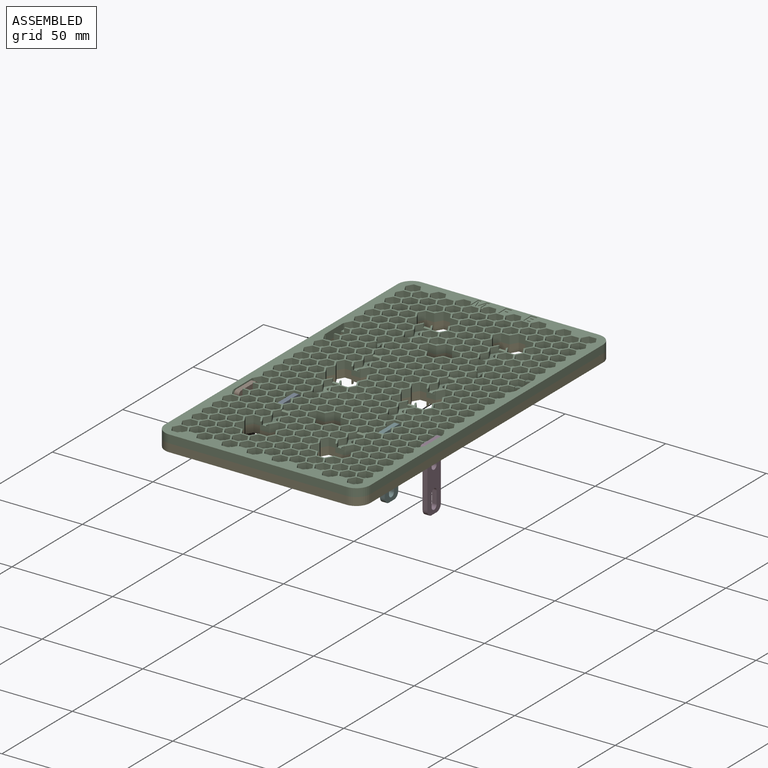
[diagram: assembled view]
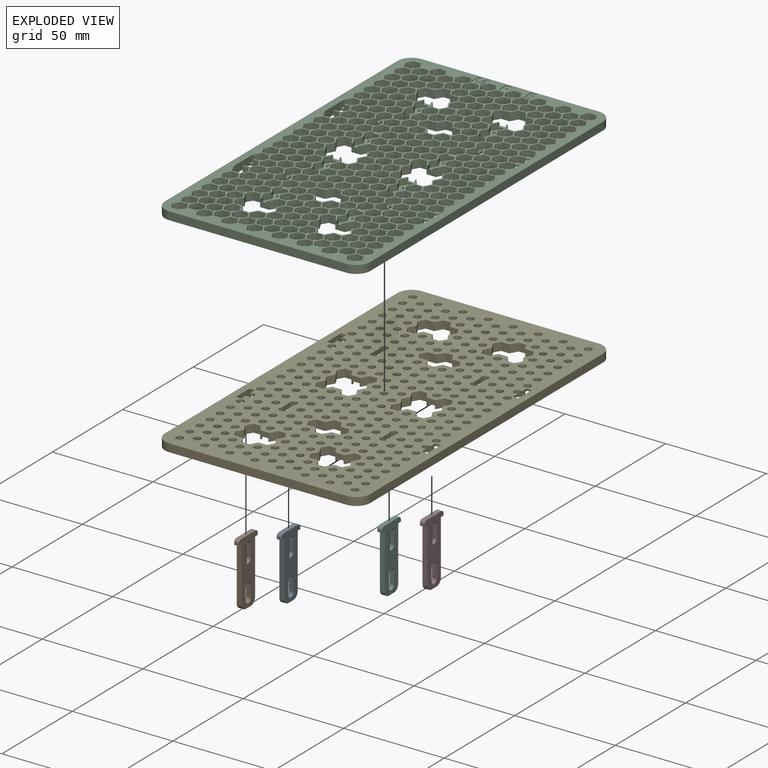
[diagram: exploded view]
GUIDED TOUR — MATED ASSEMBLY (Onshape document 57be3c49d9174e11834226ad, AutoMate assembly 57be3c49d9174e11834226ad_b768346f4bbf75b99037e4f5_8cd4293e581093f42cce2c06_default)

This assembly has 6 components, labeled P0..P5 below (a component is one placed occurrence of a part; the same part can appear more than once), held together by 5 mates. A mate is a constraint between two components; its type names the relative motion it leaves free:
  FASTENED — locks the two components together rigidly (no relative motion).
Axis/direction vectors are unit vectors and 'through' points are millimeter coordinates, both in the assembly's world frame.

MATES
  1. FASTENED "Fastened 4": P5 <-> P2, direction (0.000, 0.000, -1.000) through (26.35, -27.50, 1.00) mm
  2. FASTENED "Fastened 3": P0 <-> P2, direction (0.000, 0.000, -1.000) through (-23.65, -27.50, 1.00) mm
  3. FASTENED "Fastened 1": P2 <-> P4, direction (0.000, 0.000, 1.000) through (0.00, 0.00, 0.00) mm
  4. FASTENED "Fastened 2": P1 <-> P2, direction (0.000, 0.000, -1.000) through (-44.85, -27.50, 1.00) mm
  5. FASTENED "Fastened 5": P3 <-> P2, direction (0.000, 0.000, -1.000) through (47.55, -27.50, 1.00) mm

ASSEMBLY ORDER
  1. P4 — the base component [order verified]
  2. P2 [order verified]
  3. P5 [order verified]
  4. P0 [order verified]
  5. P1 [order verified]
  6. P3 [order verified]
Order-tag legend:
  [order verified] — this step's position reverses a verified removal order: the component was checked to insert without passing through the ones already placed.

Of the 6 components, 4 carry the full construction recipe — the FeatureScript program that regenerates the part's solid from scratch; the rest are supplied as boundary geometry only.
Each toured component is shown spotlighted twice — in the assembled view, then in the exploded view, where a leader line traces a displaced component back to its assembled socket (saturated green if recipe-attached, orange if geometry-only; every other component desaturated gray) — followed by its recipe or geometry summary and the mates that hold it.
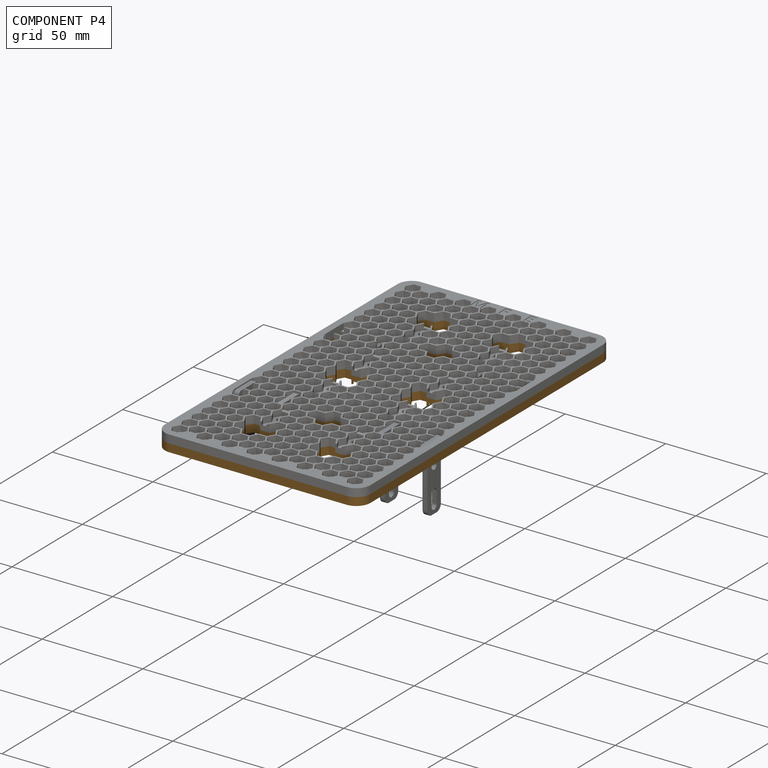
[diagram: component P4 — assembled]
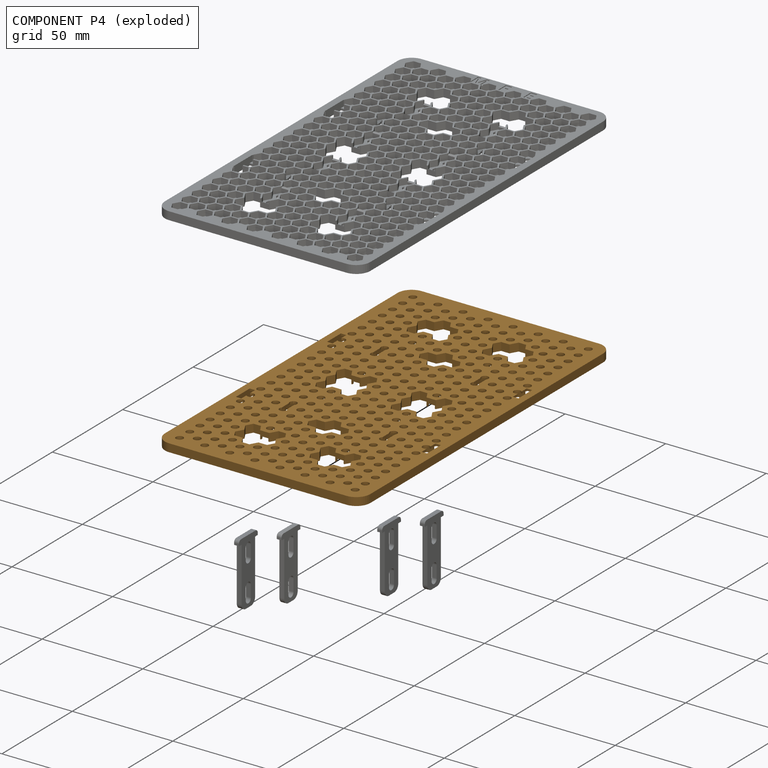
[diagram: component P4 — exploded]
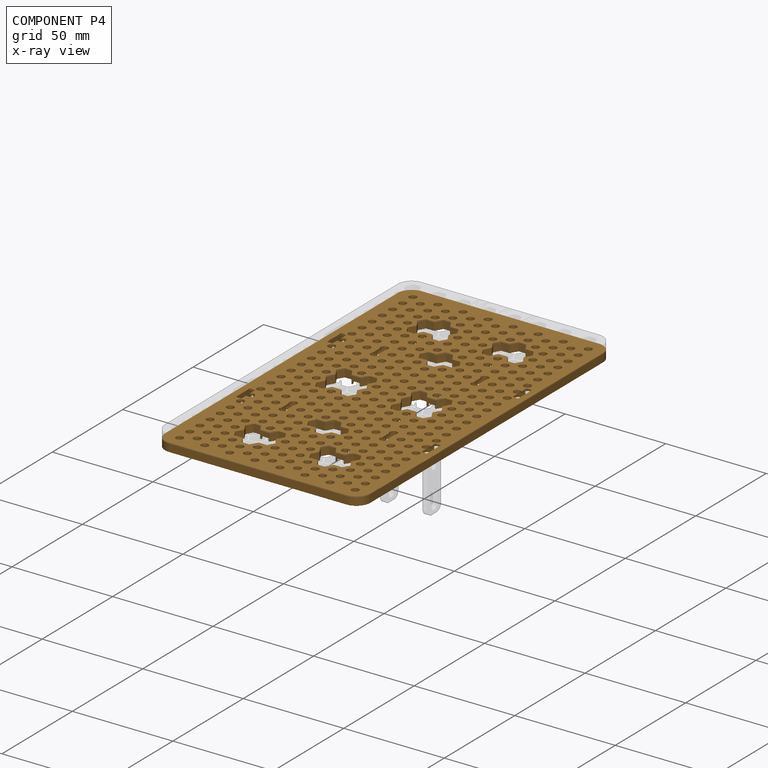
[diagram: component P4 — x-ray view]
COMPONENT P4 — geometry summary (no construction recipe available for this part):
  bounding box: 179.2 x 102.1 x 4.0 mm
  B-rep topology: 1 solid, 2794 faces, 15020 edges
  volume: 29267 mm^3 (40% of its bounding box)
  symmetry: 2-fold rotationally symmetric about the z axis; mirror-symmetric across its x mid-plane, y mid-plane
Held by: FASTENED mate "Fastened 1" to P2.
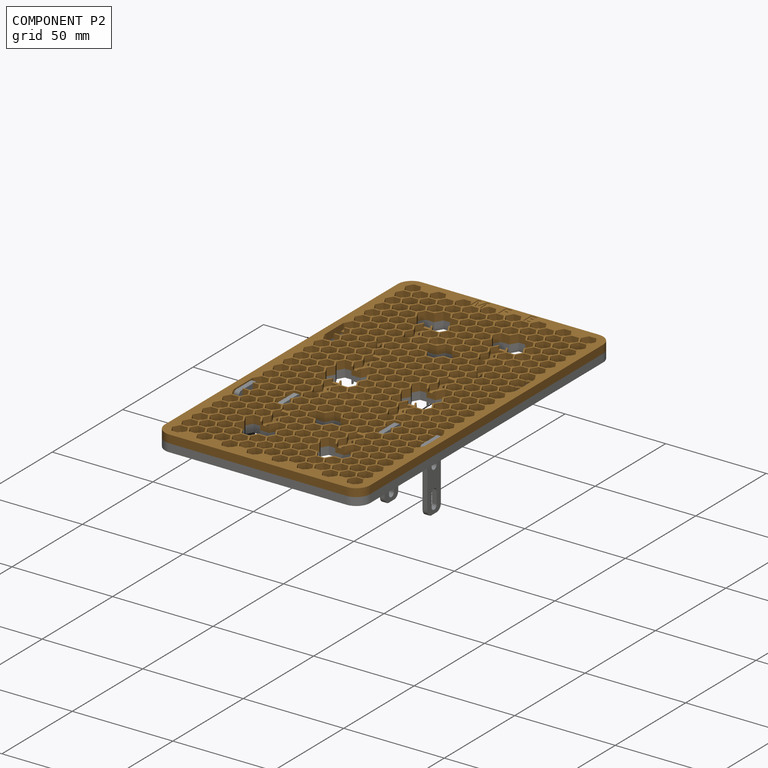
[diagram: component P2 — assembled]
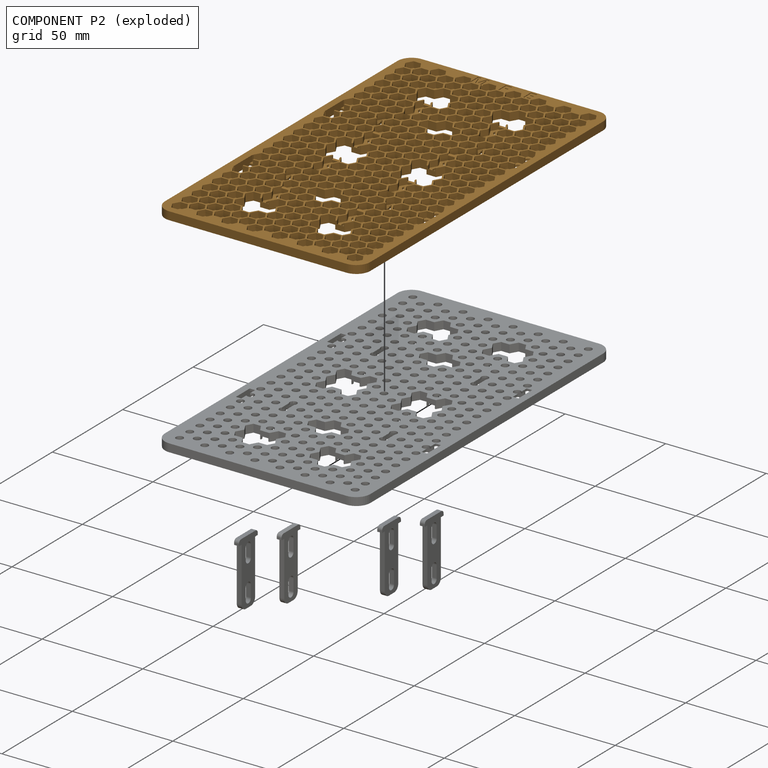
[diagram: component P2 — exploded]
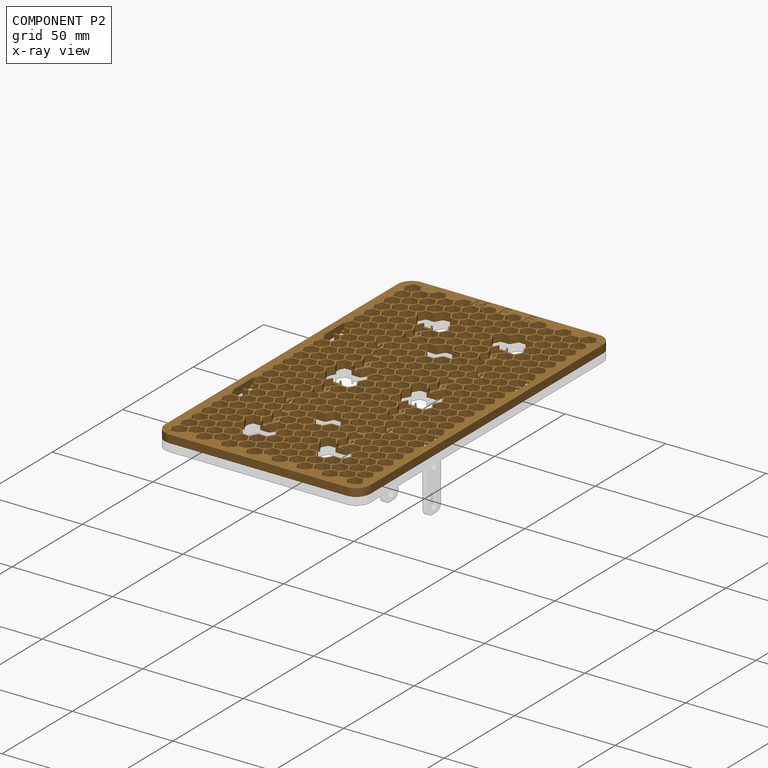
[diagram: component P2 — x-ray view]
COMPONENT P2 — geometry summary (no construction recipe available for this part):
  bounding box: 179.2 x 102.1 x 4.0 mm
  B-rep topology: 1 solid, 2794 faces, 15020 edges
  volume: 29267 mm^3 (40% of its bounding box)
  symmetry: 2-fold rotationally symmetric about the z axis; mirror-symmetric across its x mid-plane, y mid-plane
Held by: FASTENED mate "Fastened 4" to P5; FASTENED mate "Fastened 3" to P0; FASTENED mate "Fastened 1" to P4; FASTENED mate "Fastened 2" to P1; FASTENED mate "Fastened 5" to P3.
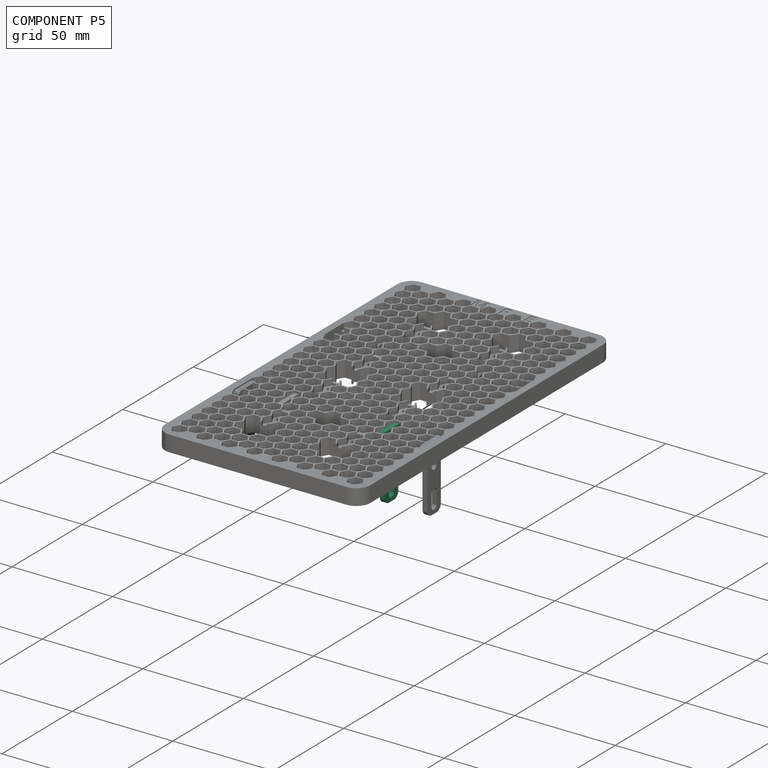
[diagram: component P5 — assembled]
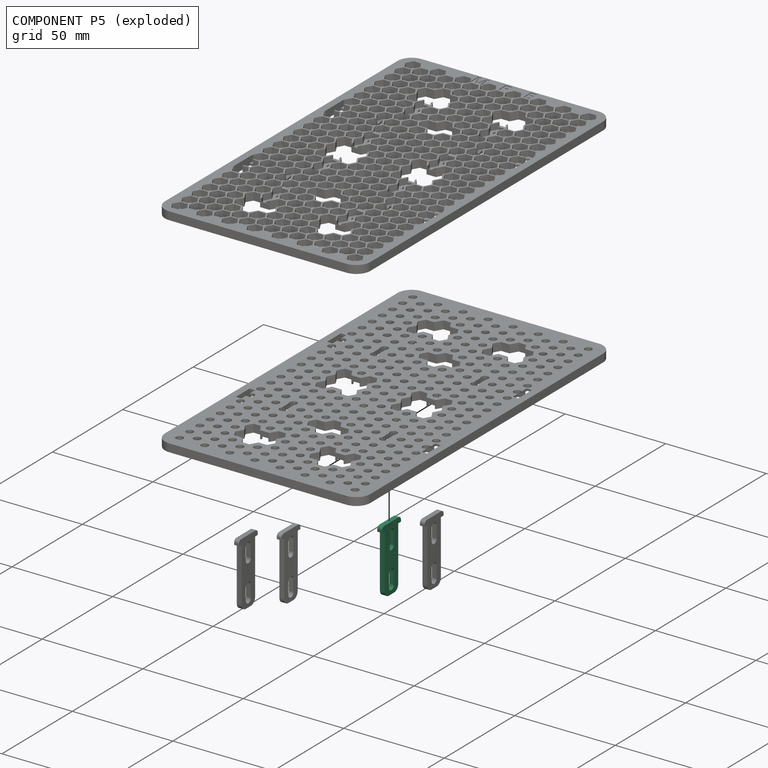
[diagram: component P5 — exploded]
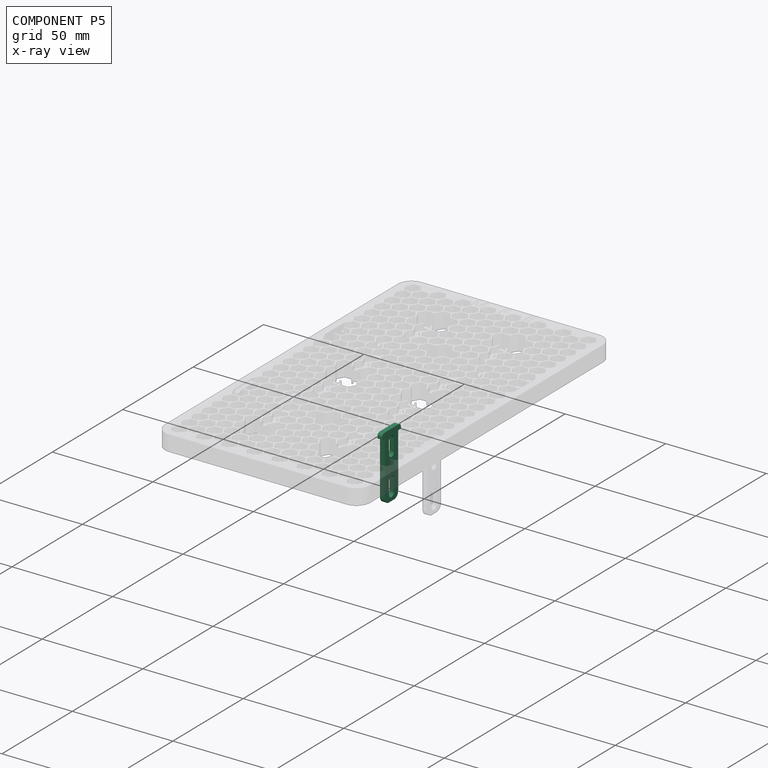
[diagram: component P5 — x-ray view]
COMPONENT P5 — same part as P0 (CADFS 00225727); its construction recipe is shown at P0.
Held by: FASTENED mate "Fastened 4" to P2.
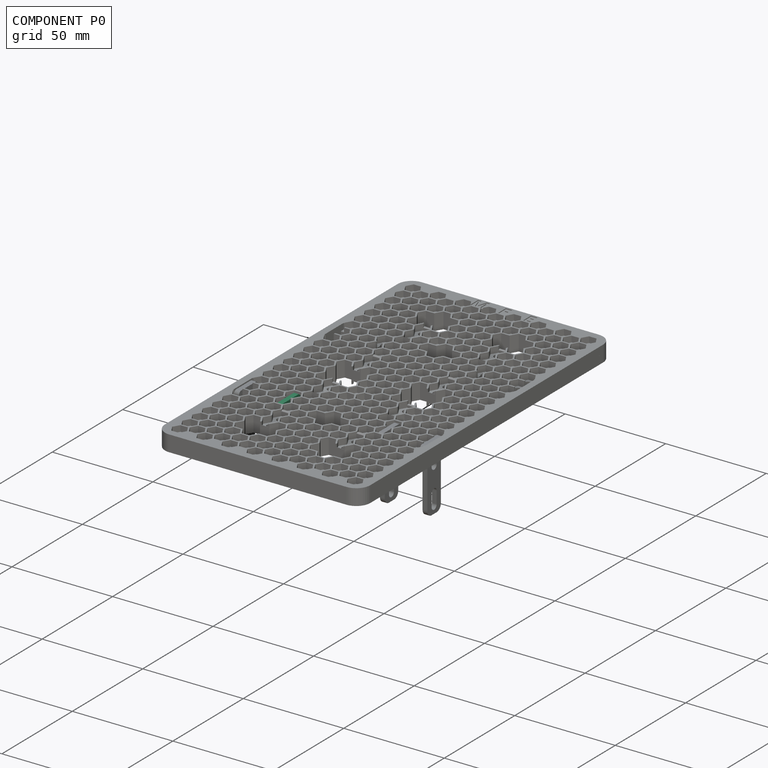
[diagram: component P0 — assembled]
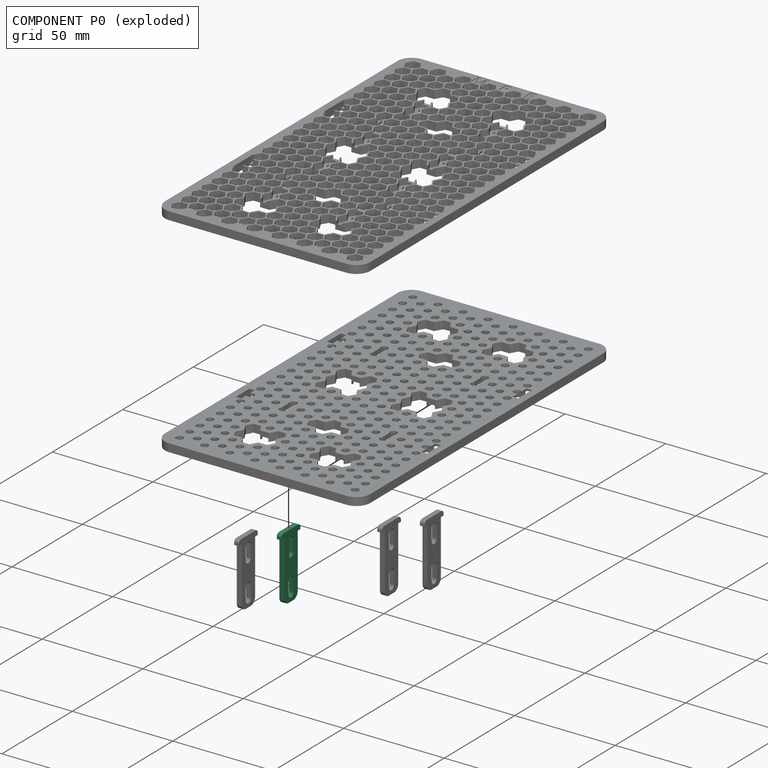
[diagram: component P0 — exploded]
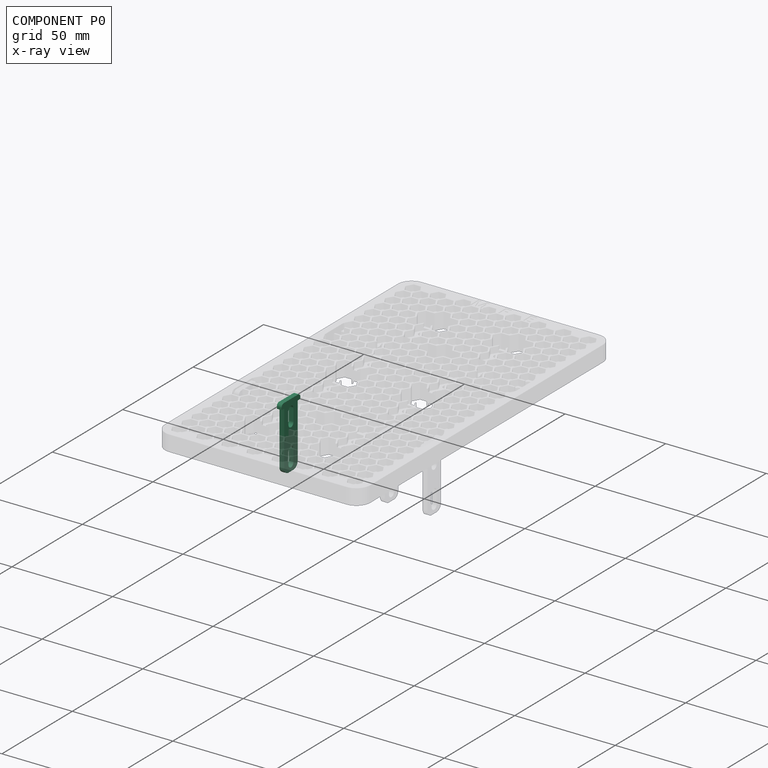
[diagram: component P0 — x-ray view]
COMPONENT P0 — recipe-attached (CADFS 00225727, mesh-verified: the recipe's output STEP matches this component's geometry to below the mesh-comparison resolution (tessellation chordal tolerance ~0.053 mm)).
Held by: FASTENED mate "Fastened 3" to P2.
Construction recipe (FeatureScript — the CAD program that rebuilds this solid; sketch coordinates are in the units given by the * unit suffixes, e.g. mm):

FeatureScript 1511;
import(path : "onshape/std/geometry.fs", version : "1511.0");
import(path : "onshape/std/common.fs", version : "1511.0");
const mm = millimeter;
const VERTEX = EntityType.VERTEX;
const EDGE = EntityType.EDGE;
const FACE = EntityType.FACE;
const BODY = EntityType.BODY;
function v(x, y){return vector(x, y);}
function OD(order){return orderDisambiguation(order);}
function OSD(set){return originalSetDisambiguation(set);}
function TD(topology){return topologyDisambiguation(topology);}
function TDD(query){return trueDependencyDisambiguation(query);}
function sQuery(a, b, c) {return sketchEntityQuery(a, b, c);}

annotation { "Feature Type Name" : "Feature", "Feature Type Description" : "" }
export const myFeature = defineFeature(function(context is Context, id is Id, definition is map)
    precondition{}
    {
        {
            var Q0;
            Q0=qCreatedBy(makeId("Right.planeOp"),FACE);
            var sketch = newSketch(context, id + "F0", { "sketchPlane" : qUnion([Q0])});
            skLineSegment(sketch, "E0", {"start": v(-6.7, 3.6) * mm, "end": v(-6.7, 1) * mm});
            skLineSegment(sketch, "E1", {"start": v(-6.7, 1) * mm, "end": v(-4.8, 1) * mm});
            skLineSegment(sketch, "E2", {"start": v(-4.8, 1) * mm, "end": v(-4.8, -29) * mm});
            skLineSegment(sketch, "E3", {"start": v(-4.8, -29) * mm, "end": v(4.8, -29) * mm});
            skLineSegment(sketch, "E4", {"start": v(4.8, -29) * mm, "end": v(4.8, 1) * mm});
            skLineSegment(sketch, "E5", {"start": v(4.8, 1) * mm, "end": v(6.7, 1) * mm});
            skLineSegment(sketch, "E6", {"start": v(6.7, 1) * mm, "end": v(6.7, 3.6) * mm});
            skLineSegment(sketch, "E7", {"start": v(6.7, 3.6) * mm, "end": v(-6.7, 3.6) * mm});
            skLineSegment(sketch, "E8", {"start": v(0, 0) * mm, "end": v(0, 3.6) * mm, "construction": true});
            skSolve(sketch);
        }
        {
            var Q0;
            Q0=qCreatedBy(makeId("Right.planeOp"),FACE);
            var sketch = newSketch(context, id + "F1", { "sketchPlane" : qUnion([Q0])});
            skLineSegment(sketch, "E9", {"start": v(0, 0) * mm, "end": v(0, -32.86) * mm, "construction": true});
            skArc(sketch, "E10", {"start": v(1.8, -1.4) * mm, "mid": v(0, 0.4) * mm, "end": v(-1.8, -1.4) * mm});
            skArc(sketch, "E11", {"start": v(-1.8, -7.4) * mm, "mid": v(0, -9.2) * mm, "end": v(1.8, -7.4) * mm});
            skArc(sketch, "E12", {"start": v(1.8, -19.4) * mm, "mid": v(0, -17.6) * mm, "end": v(-1.8, -19.4) * mm});
            skArc(sketch, "E13", {"start": v(-1.8, -25.4) * mm, "mid": v(0, -27.2) * mm, "end": v(1.8, -25.4) * mm});
            skLineSegment(sketch, "E14", {"start": v(-1.8, -1.4) * mm, "end": v(-1.8, -7.4) * mm});
            skLineSegment(sketch, "E15", {"start": v(-1.8, -19.4) * mm, "end": v(-1.8, -25.4) * mm});
            skLineSegment(sketch, "E16", {"start": v(1.8, -25.4) * mm, "end": v(1.8, -19.4) * mm});
            skLineSegment(sketch, "E17", {"start": v(1.8, -7.4) * mm, "end": v(1.8, -1.4) * mm});
            skSolve(sketch);
        }
        {
            var Q0;
            Q0=qSketchRegion(id+"F0",true);
            extrude(context, id + "F2", {"entities" : qUnion([Q0]), "endBound" : BoundingType.SYMMETRIC, "depth" : 2.4 * mm});
        }
        {
            var Q0;
            Q0=qSketchRegion(id+"F1",true);
            extrude(context, id + "F3", {"entities" : qUnion([Q0]), "operationType" : NewBodyOperationType.REMOVE, "endBound" : BoundingType.THROUGH_ALL, "oppositeDirection" : true, "depth" : 25 * mm, "hasSecondDirection" : true, "secondDirectionBound" : SecondDirectionBoundingType.THROUGH_ALL, "secondDirectionOppositeDirection" : false, "secondDirectionDepth" : 25 * mm});
        }
        {
            var Q0;
            Q0=makeQuery(id+"F2.opExtrude","SWEPT_EDGE",EDGE,{"disambiguationData":[OSD([sQuery(id+"F0.wireOp",EDGE,"E6"),sQuery(id+"F0.wireOp",EDGE,"E7")])]});
            var Q1;
            Q1=makeQuery(id+"F2.opExtrude","SWEPT_EDGE",EDGE,{"disambiguationData":[OSD([sQuery(id+"F0.wireOp",EDGE,"E0"),sQuery(id+"F0.wireOp",EDGE,"E7")])]});
            fillet(context, id + "F4", {"entities" : qUnion([Q0, Q1]), "radius" : 1.6 * mm, "tangentPropagation" : true, "allowEdgeOverflow" : false});
        }
        {
            var Q0;
            Q0=makeQuery(id+"F2.opExtrude","SWEPT_EDGE",EDGE,{"disambiguationData":[OSD([sQuery(id+"F0.wireOp",EDGE,"E3"),sQuery(id+"F0.wireOp",EDGE,"E4")])]});
            var Q1;
            Q1=makeQuery(id+"F2.opExtrude","SWEPT_EDGE",EDGE,{"disambiguationData":[OSD([sQuery(id+"F0.wireOp",EDGE,"E2"),sQuery(id+"F0.wireOp",EDGE,"E3")])]});
            fillet(context, id + "F5", {"entities" : qUnion([Q0, Q1]), "radius" : 3 * mm, "tangentPropagation" : true, "allowEdgeOverflow" : false});
        }
    });
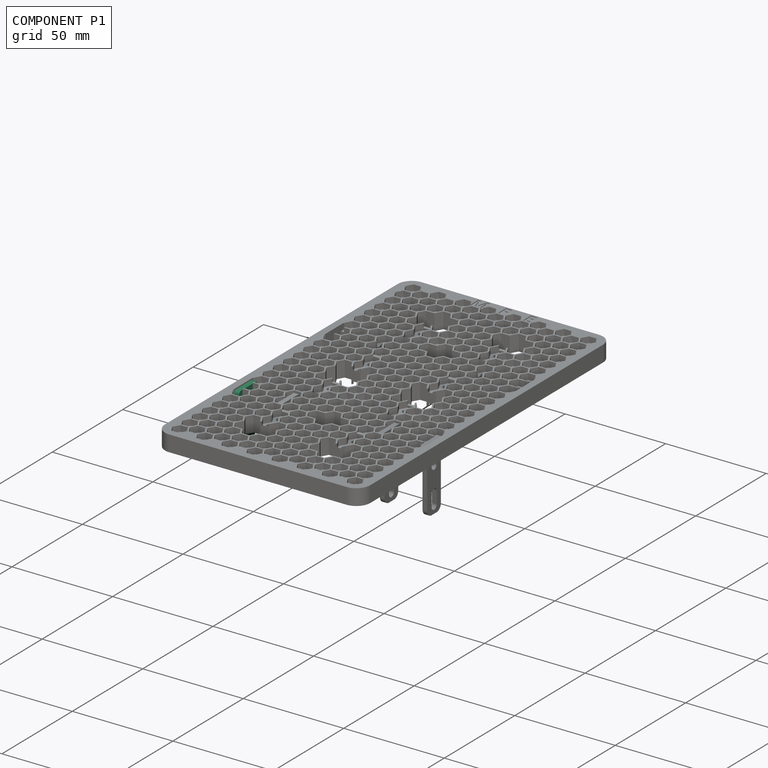
[diagram: component P1 — assembled]
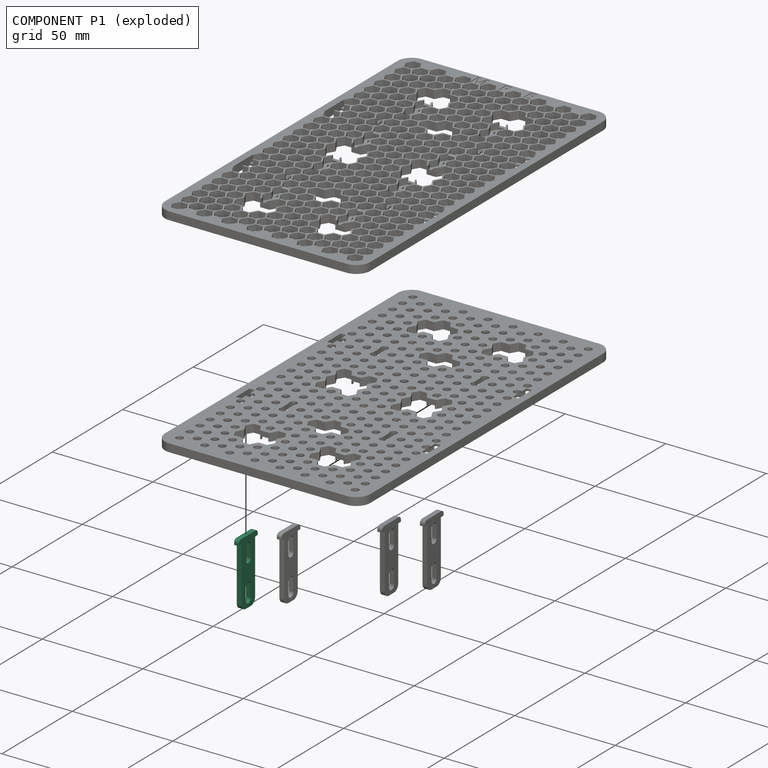
[diagram: component P1 — exploded]
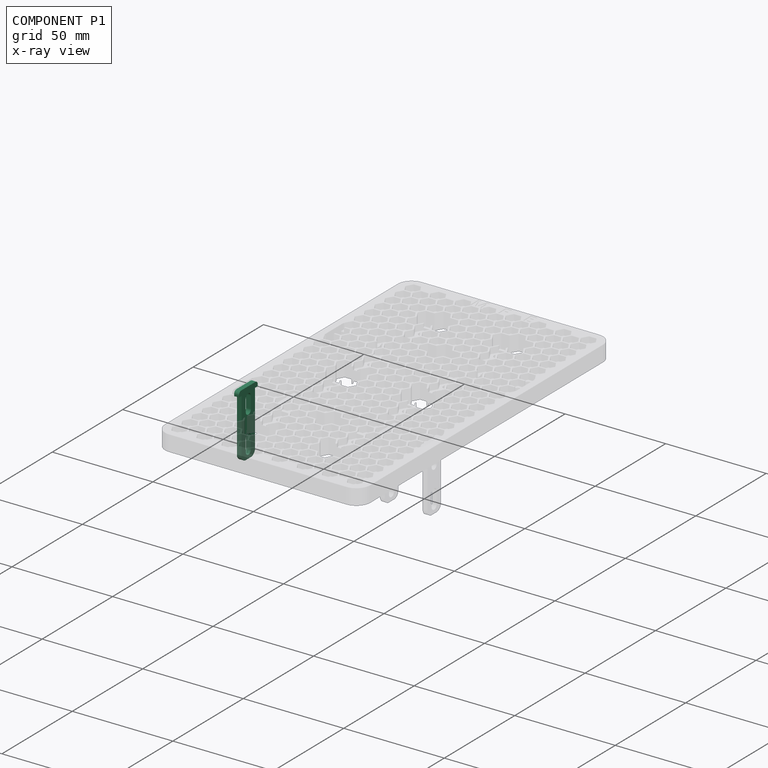
[diagram: component P1 — x-ray view]
COMPONENT P1 — same part as P0 (CADFS 00225727); its construction recipe is shown at P0.
Held by: FASTENED mate "Fastened 2" to P2.
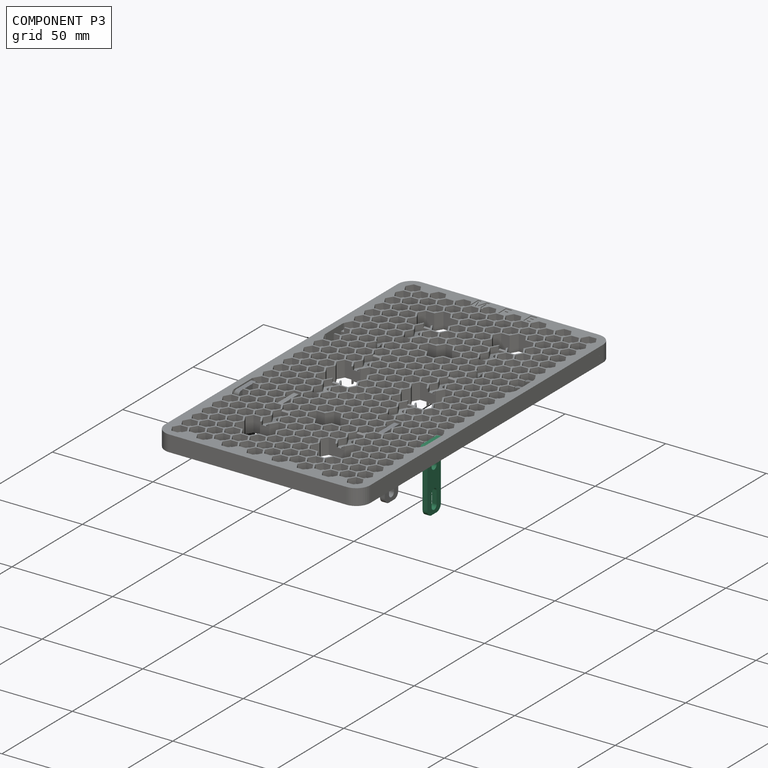
[diagram: component P3 — assembled]
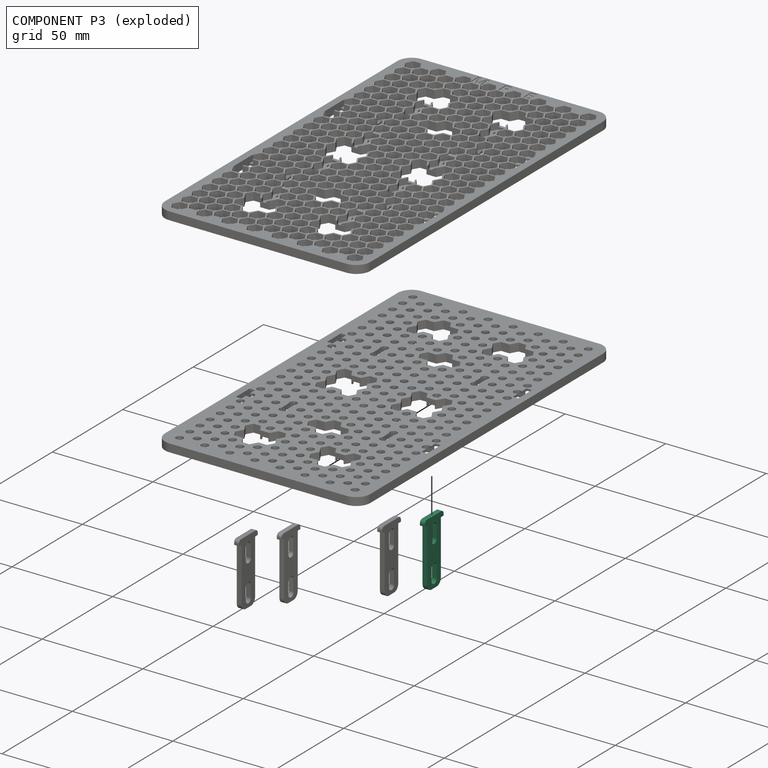
[diagram: component P3 — exploded]
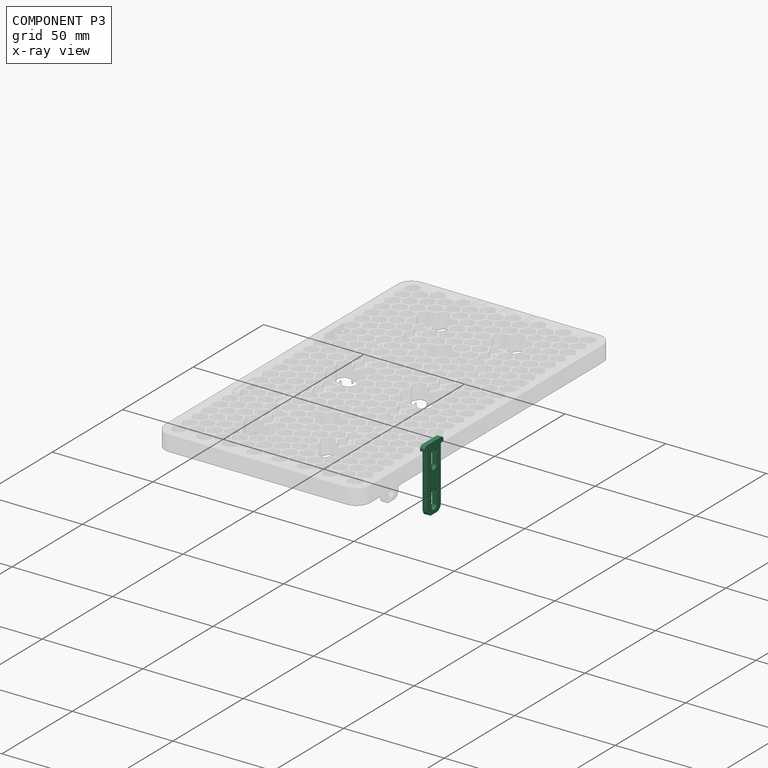
[diagram: component P3 — x-ray view]
COMPONENT P3 — same part as P0 (CADFS 00225727); its construction recipe is shown at P0.
Held by: FASTENED mate "Fastened 5" to P2.
PROVENANCE & LICENSES
Assembly (occurrences, transforms, mates, per-part STEP geometry): AutoMate dataset, Zenodo record 7776208, CC0.
Construction recipes: CADFS (HuggingFace VladPyatov/CADFS, CC-BY-4.0, layered over the ABC dataset), FeatureScript reconstruction programs keyed by ABC model id.
Join: ABC meta listings map ABC model id -> Onshape documentId; within a shared document, parts are matched by geometric signature (bounding-box dims + volume at 0.1% relative tolerance, exact B-rep face/solid counts).
Verification: 4 of this assembly's 6 components carry a recipe attachment, and every attachment is mesh-verified: the CADFS STEP and the AutoMate member STEP were compared as meshes in their shared local frame (symmetric sampled-point-to-mesh distance); worst across the 4 attachments: below the mesh-comparison resolution (tessellation chordal tolerance ~0.053 mm) on a 35 mm part.
Renders: orthographic iso camera (az 35 / el 25); the floor grid conveys scale (grid pitch printed in each image; no ruler). In the exploded view each component is displaced by its stored offset vector: the offsets alone carry the explosion direction (mate normal/axis signs are not orientation cues and do not encode it), and separation distances are assigned per mate-chain, not proportionally to assembly-order depth.
